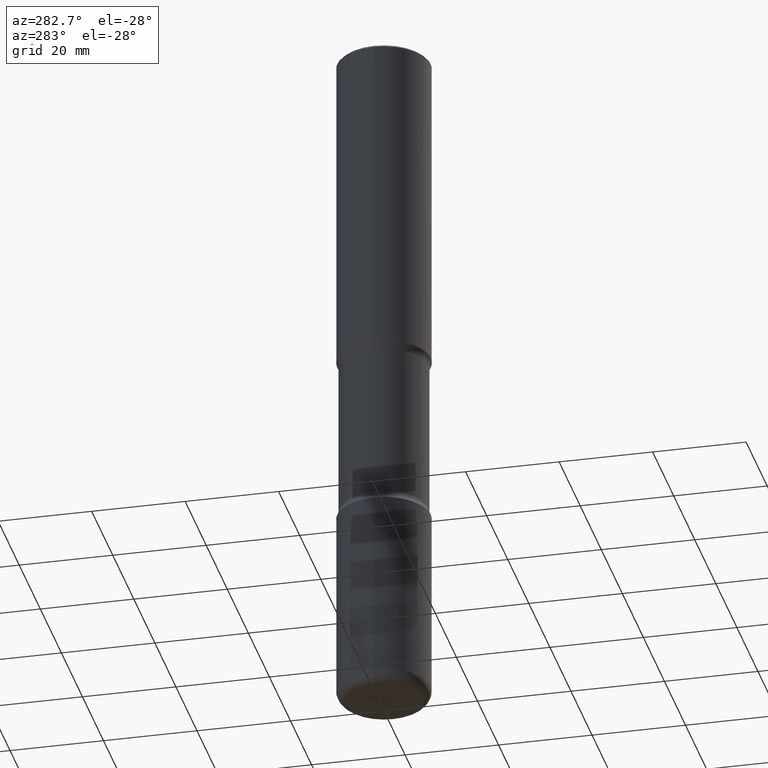
[diagram: clean part render]
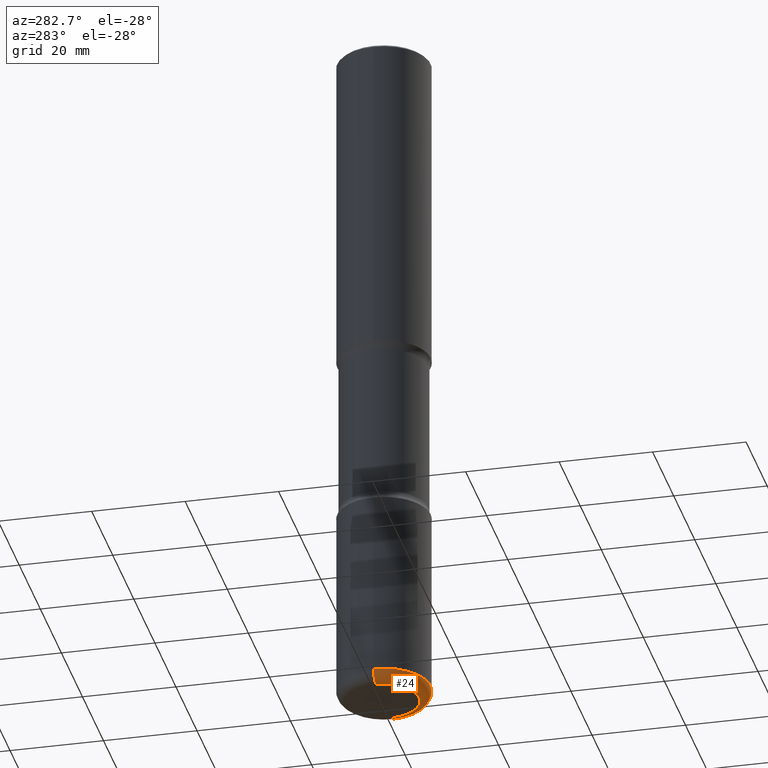
[diagram: same view with one face highlighted and labeled with its STEP entity id]
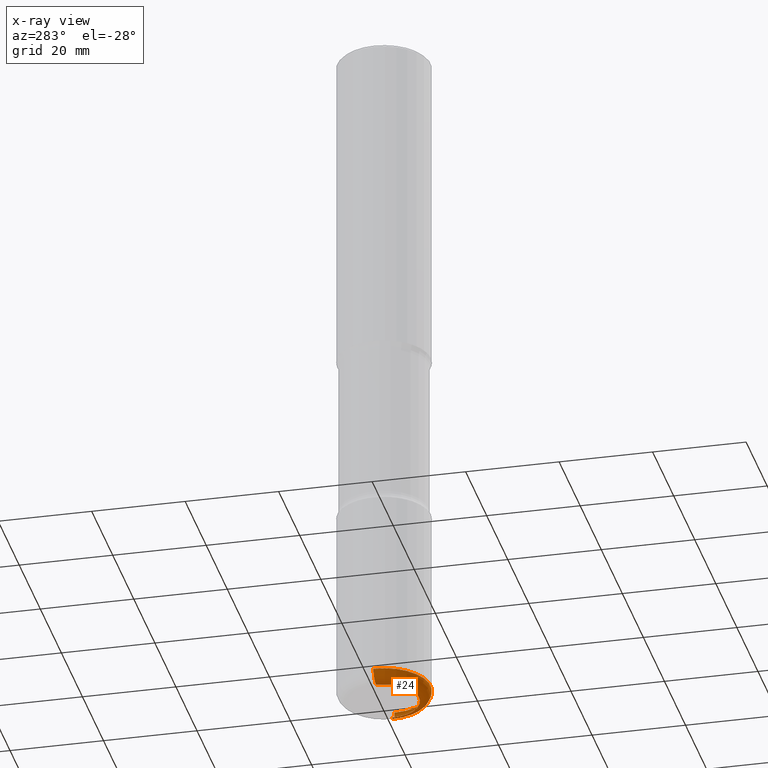
[diagram: x-ray of the same camera — body ghosted, the highlighted face saturated]
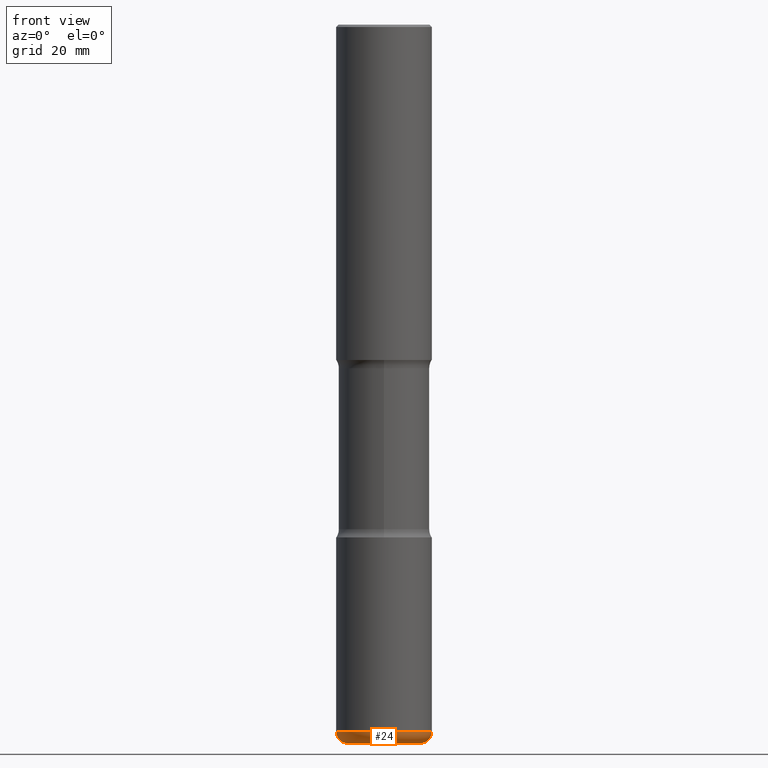
[diagram: same view with one face highlighted and labeled with its STEP entity id]
A machine part, auxiliary view. The second image highlights one B-rep face of the part: STEP entity #24.
The next image is the same camera in x-ray: the body ghosted, the highlighted face saturated — about 0% of this face is hidden behind the body in this view.
A second angle (front view) of the same face is appended — the face is thin or edge-on in the first view.
In plain terms, the highlighted toroidal blend (fillet) surface has major radius 7.5006 mm and minor (blend) radius 2.4994 mm.
Its self-contained STEP definition (entity closure, byte-faithful):
#1 = TOROIDAL_SURFACE ( 'NONE', #370, 0.2953000000000005620, 0.09840000000000062585 ) ;
#2 = DIRECTION ( 'NONE',  ( -2.445468806185136597E-29, 3.491481338843145583E-15, 1.000000000000000000 ) ) ;
#19 = CARTESIAN_POINT ( 'NONE',  ( 1.420108190439770332E-28, -2.027538128279602429E-14, -5.807099999999998374 ) ) ;
#20 = AXIS2_PLACEMENT_3D ( 'NONE', #300, #429, #132 ) ;
#24 = ADVANCED_FACE ( 'NONE', ( #448 ), #1, .T. ) ;
#40 = CARTESIAN_POINT ( 'NONE',  ( -0.2953000000000005620, -1.799934243997356436E-14, -5.905499999999999972 ) ) ;
#50 = CARTESIAN_POINT ( 'NONE',  ( 1.420108190439770332E-28, -2.027538128279602429E-14, -5.807099999999998374 ) ) ;
#54 = AXIS2_PLACEMENT_3D ( 'NONE', #50, #2, #144 ) ;
#71 = VERTEX_POINT ( 'NONE', #356 ) ;
#103 = AXIS2_PLACEMENT_3D ( 'NONE', #269, #447, #224 ) ;
#124 = EDGE_CURVE ( 'NONE', #166, #350, #156, .T. ) ;
#132 = DIRECTION ( 'NONE',  ( 1.000000000000000000, -6.982962677686257244E-15, 0.000000000000000000 ) ) ;
#144 = DIRECTION ( 'NONE',  ( 1.000000000000000000, -6.982962677686269866E-15, 0.000000000000000000 ) ) ;
#156 = CIRCLE ( 'NONE', #103, 0.09840000000000061198 ) ;
#166 = VERTEX_POINT ( 'NONE', #40 ) ;
#168 = CARTESIAN_POINT ( 'NONE',  ( 1.444171603492632270E-28, -2.061894304653819197E-14, -5.905499999999999972 ) ) ;
#170 = EDGE_CURVE ( 'NONE', #166, #71, #180, .T. ) ;
#180 = CIRCLE ( 'NONE', #215, 0.2953000000000005620 ) ;
#199 = EDGE_CURVE ( 'NONE', #71, #461, #541, .T. ) ;
#212 = DIRECTION ( 'NONE',  ( -2.445468806185136597E-29, 3.491481338843145583E-15, 1.000000000000000000 ) ) ;
#214 = ORIENTED_EDGE ( 'NONE', *, *, #124, .F. ) ;
#215 = AXIS2_PLACEMENT_3D ( 'NONE', #168, #212, #520 ) ;
#223 = ORIENTED_EDGE ( 'NONE', *, *, #170, .T. ) ;
#224 = DIRECTION ( 'NONE',  ( -1.000000000000000000, 7.105427357600994759E-15, 0.000000000000000000 ) ) ;
#231 = CARTESIAN_POINT ( 'NONE',  ( 0.3937000000000008271, -2.302457368900111381E-14, -5.807099999999998374 ) ) ;
#269 = CARTESIAN_POINT ( 'NONE',  ( -0.2953000000000005620, -1.817714858409644444E-14, -5.807099999999998374 ) ) ;
#299 = EDGE_LOOP ( 'NONE', ( #214, #223, #446, #424 ) ) ;
#300 = CARTESIAN_POINT ( 'NONE',  ( 0.2953000000000005620, -2.233745016151678477E-14, -5.807099999999998374 ) ) ;
#314 = CARTESIAN_POINT ( 'NONE',  ( -0.3937000000000008271, -1.747797453210850398E-14, -5.807099999999998374 ) ) ;
#343 = EDGE_CURVE ( 'NONE', #350, #461, #542, .T. ) ;
#350 = VERTEX_POINT ( 'NONE', #314 ) ;
#356 = CARTESIAN_POINT ( 'NONE',  ( 0.2953000000000005620, -2.268101192525895245E-14, -5.905499999999999972 ) ) ;
#370 = AXIS2_PLACEMENT_3D ( 'NONE', #19, #403, #503 ) ;
#403 = DIRECTION ( 'NONE',  ( -2.445468806185136597E-29, 3.491481338843145583E-15, 1.000000000000000000 ) ) ;
#424 = ORIENTED_EDGE ( 'NONE', *, *, #343, .F. ) ;
#429 = DIRECTION ( 'NONE',  ( -6.982962677686266711E-15, -1.000000000000000000, 3.491481338843145583E-15 ) ) ;
#446 = ORIENTED_EDGE ( 'NONE', *, *, #199, .T. ) ;
#447 = DIRECTION ( 'NONE',  ( 7.105427357601001859E-15, 1.000000000000000000, -3.491481338843145583E-15 ) ) ;
#448 = FACE_OUTER_BOUND ( 'NONE', #299, .T. ) ;
#461 = VERTEX_POINT ( 'NONE', #231 ) ;
#503 = DIRECTION ( 'NONE',  ( 1.000000000000000000, -6.982962677686267499E-15, 4.883557194083112901E-29 ) ) ;
#520 = DIRECTION ( 'NONE',  ( 1.000000000000000000, -6.982962677686270655E-15, 0.000000000000000000 ) ) ;
#541 = CIRCLE ( 'NONE', #20, 0.09840000000000061198 ) ;
#542 = CIRCLE ( 'NONE', #54, 0.3937000000000004940 ) ;